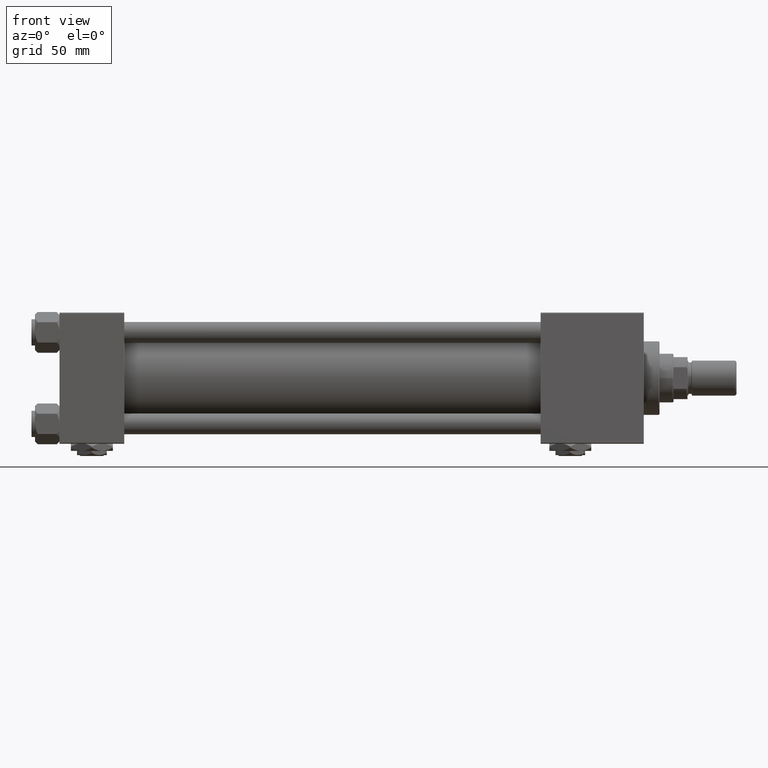
[diagram: clean part render]
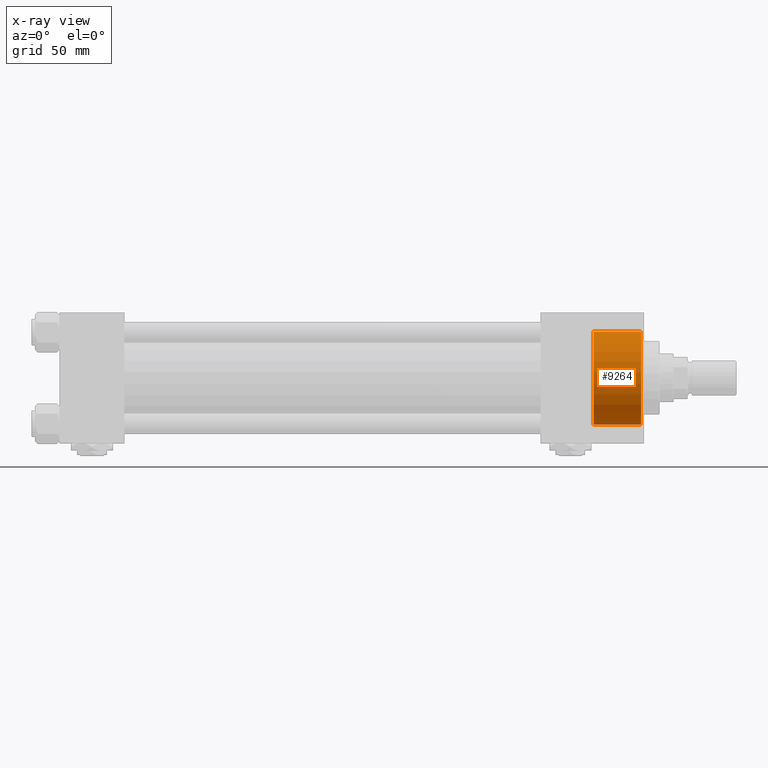
[diagram: x-ray — body ghosted, one internal face saturated and labeled with its STEP entity id]
A machine part, front view, then the same camera in x-ray: the body is ghosted and one INTERNAL B-rep face — a face not visible from any outside direction — is saturated and labeled: STEP entity #9264.
In plain terms, the highlighted cylindrical surface (partial cylindrical patch) has radius 26.5 mm, axis along (1, 0, 0).
Its self-contained STEP definition (entity closure, byte-faithful):
#25 = EDGE_CURVE ( 'NONE', #3657, #25217, #45169, .T. ) ;
#810 = CARTESIAN_POINT ( 'NONE',  ( 332.5000000000000000, 0.000000000000000000, -26.50000000000000355 ) ) ;
#3657 = VERTEX_POINT ( 'NONE', #25565 ) ;
#5540 = VECTOR ( 'NONE', #27033, 1000.000000000000000 ) ;
#5611 = CARTESIAN_POINT ( 'NONE',  ( 305.2999999999999545, 0.000000000000000000, -26.50000000000000355 ) ) ;
#8347 = DIRECTION ( 'NONE',  ( 1.000000000000000000, 0.000000000000000000, 0.000000000000000000 ) ) ;
#8745 = LINE ( 'NONE', #27947, #17538 ) ;
#9264 = ADVANCED_FACE ( 'NONE', ( #10528 ), #18012, .F. ) ;
#10528 = FACE_OUTER_BOUND ( 'NONE', #41468, .T. ) ;
#12805 = DIRECTION ( 'NONE',  ( 0.000000000000000000, 0.000000000000000000, 1.000000000000000000 ) ) ;
#14801 = DIRECTION ( 'NONE',  ( 1.000000000000000000, -0.000000000000000000, -0.000000000000000000 ) ) ;
#16870 = CARTESIAN_POINT ( 'NONE',  ( 305.2999999999999545, 0.000000000000000000, 0.000000000000000000 ) ) ;
#17119 = AXIS2_PLACEMENT_3D ( 'NONE', #25578, #41542, #12805 ) ;
#17538 = VECTOR ( 'NONE', #44183, 1000.000000000000000 ) ;
#18012 = CYLINDRICAL_SURFACE ( 'NONE', #37852, 26.50000000000000355 ) ;
#19380 = EDGE_CURVE ( 'NONE', #24211, #42443, #37785, .T. ) ;
#24211 = VERTEX_POINT ( 'NONE', #38914 ) ;
#24619 = EDGE_CURVE ( 'NONE', #42443, #25217, #8745, .T. ) ;
#25038 = EDGE_CURVE ( 'NONE', #24211, #3657, #27306, .T. ) ;
#25217 = VERTEX_POINT ( 'NONE', #810 ) ;
#25565 = CARTESIAN_POINT ( 'NONE',  ( 332.5000000000000000, 3.245314017740486554E-15, 26.50000000000000355 ) ) ;
#25578 = CARTESIAN_POINT ( 'NONE',  ( 332.5000000000000000, 0.000000000000000000, 0.000000000000000000 ) ) ;
#27002 = ORIENTED_EDGE ( 'NONE', *, *, #25, .T. ) ;
#27033 = DIRECTION ( 'NONE',  ( 1.000000000000000000, -0.000000000000000000, -0.000000000000000000 ) ) ;
#27306 = LINE ( 'NONE', #47529, #5540 ) ;
#27947 = CARTESIAN_POINT ( 'NONE',  ( 305.2999999999999545, 0.000000000000000000, -26.50000000000000355 ) ) ;
#29701 = ORIENTED_EDGE ( 'NONE', *, *, #25038, .T. ) ;
#37785 = CIRCLE ( 'NONE', #46303, 26.50000000000000355 ) ;
#37852 = AXIS2_PLACEMENT_3D ( 'NONE', #38254, #14801, #47296 ) ;
#38254 = CARTESIAN_POINT ( 'NONE',  ( 305.2999999999999545, 0.000000000000000000, 0.000000000000000000 ) ) ;
#38914 = CARTESIAN_POINT ( 'NONE',  ( 305.2999999999999545, 3.245314017740486554E-15, 26.50000000000000355 ) ) ;
#41100 = DIRECTION ( 'NONE',  ( 0.000000000000000000, 0.000000000000000000, -1.000000000000000000 ) ) ;
#41468 = EDGE_LOOP ( 'NONE', ( #51973, #29701, #27002, #45493 ) ) ;
#41542 = DIRECTION ( 'NONE',  ( 1.000000000000000000, 0.000000000000000000, 0.000000000000000000 ) ) ;
#42443 = VERTEX_POINT ( 'NONE', #5611 ) ;
#44183 = DIRECTION ( 'NONE',  ( 1.000000000000000000, -0.000000000000000000, -0.000000000000000000 ) ) ;
#45169 = CIRCLE ( 'NONE', #17119, 26.50000000000000355 ) ;
#45493 = ORIENTED_EDGE ( 'NONE', *, *, #24619, .F. ) ;
#46303 = AXIS2_PLACEMENT_3D ( 'NONE', #16870, #8347, #41100 ) ;
#47296 = DIRECTION ( 'NONE',  ( 0.000000000000000000, 0.000000000000000000, -1.000000000000000000 ) ) ;
#47529 = CARTESIAN_POINT ( 'NONE',  ( 305.2999999999999545, 3.245314017740486554E-15, 26.50000000000000355 ) ) ;
#51973 = ORIENTED_EDGE ( 'NONE', *, *, #19380, .F. ) ;